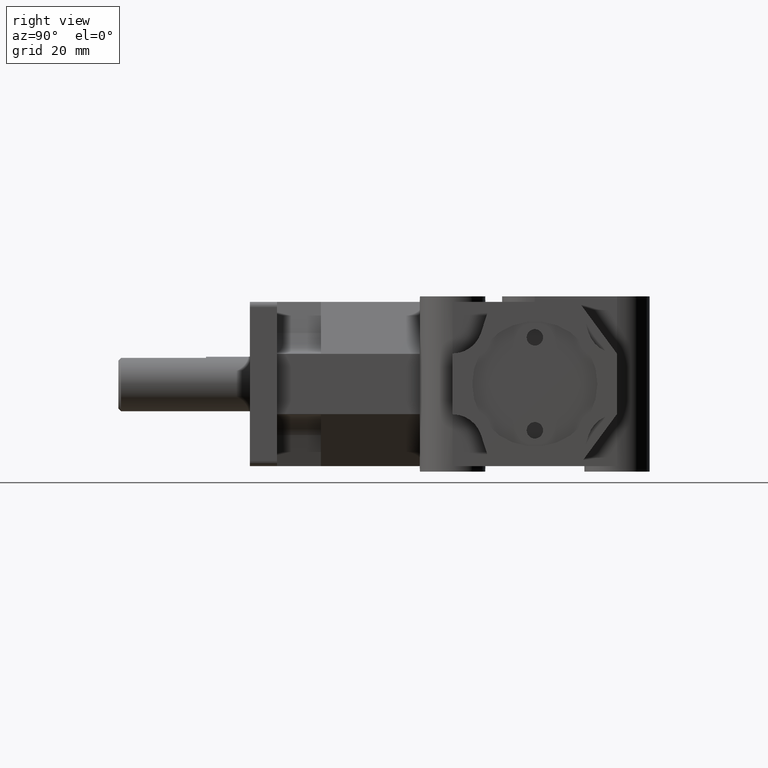
[diagram: clean part render]
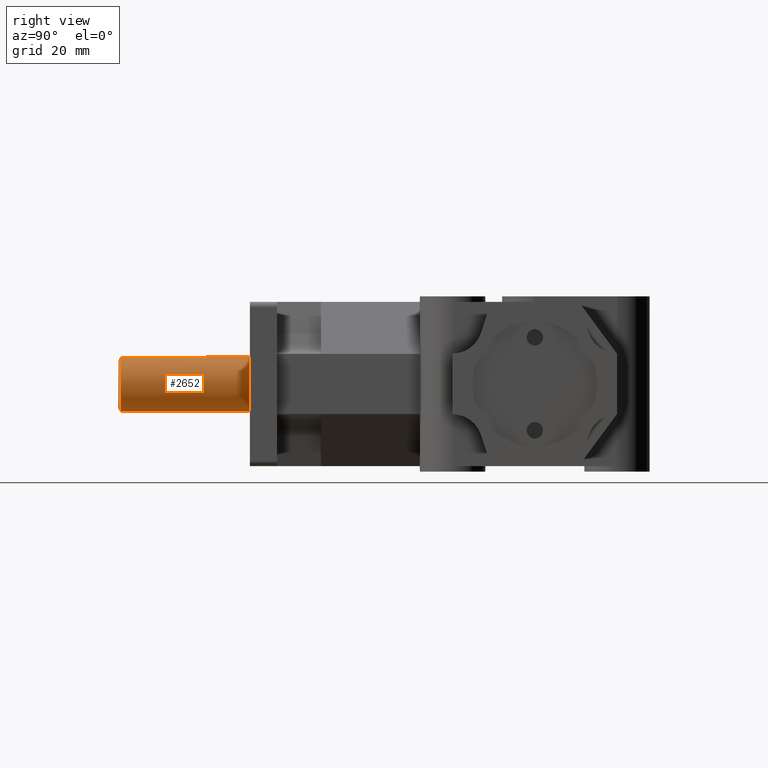
[diagram: same view with one face highlighted and labeled with its STEP entity id]
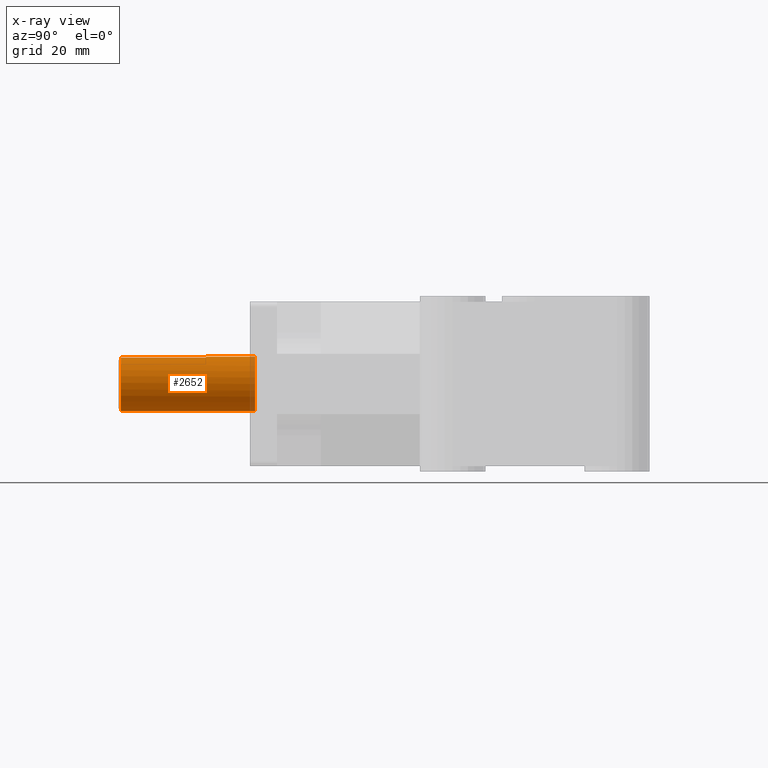
[diagram: x-ray of the same camera — body ghosted, the highlighted face saturated]
A machine part, right view. The second image highlights one B-rep face of the part: STEP entity #2652.
The next image is the same camera in x-ray: the body ghosted, the highlighted face saturated — about 4% of this face is hidden behind the body in this view.
In plain terms, the highlighted cylindrical surface (bore or boss wall) has radius 7.9375 mm, axis along (0, -1, 0).
Its self-contained STEP definition (entity closure, byte-faithful):
#259=FACE_OUTER_BOUND('',#437,.T.);
#437=EDGE_LOOP('',(#2248,#2249,#2250,#2251,#2252,#2253,#2254,#2255));
#689=LINE('',#4341,#954);
#694=LINE('',#4350,#959);
#696=LINE('',#4356,#961);
#954=VECTOR('',#3541,1.);
#959=VECTOR('',#3548,1.);
#961=VECTOR('',#3558,0.3125);
#1041=CIRCLE('',#2750,0.3125);
#1105=CIRCLE('',#2894,0.3125);
#1106=CIRCLE('',#2895,0.3125);
#1108=CIRCLE('',#2901,0.3125);
#1149=VERTEX_POINT('',#3820);
#1320=VERTEX_POINT('',#4320);
#1321=VERTEX_POINT('',#4324);
#1322=VERTEX_POINT('',#4326);
#1326=VERTEX_POINT('',#4340);
#1329=VERTEX_POINT('',#4348);
#1400=EDGE_CURVE('',#1149,#1149,#1041,.T.);
#1650=EDGE_CURVE('',#1320,#1321,#1105,.T.);
#1651=EDGE_CURVE('',#1321,#1322,#1106,.T.);
#1657=EDGE_CURVE('',#1326,#1322,#689,.T.);
#1662=EDGE_CURVE('',#1320,#1329,#694,.T.);
#1663=EDGE_CURVE('',#1329,#1326,#1108,.T.);
#1665=EDGE_CURVE('',#1321,#1149,#696,.T.);
#2248=ORIENTED_EDGE('',*,*,#1650,.F.);
#2249=ORIENTED_EDGE('',*,*,#1662,.T.);
#2250=ORIENTED_EDGE('',*,*,#1663,.T.);
#2251=ORIENTED_EDGE('',*,*,#1657,.T.);
#2252=ORIENTED_EDGE('',*,*,#1651,.F.);
#2253=ORIENTED_EDGE('',*,*,#1665,.T.);
#2254=ORIENTED_EDGE('',*,*,#1400,.F.);
#2255=ORIENTED_EDGE('',*,*,#1665,.F.);
#2541=CYLINDRICAL_SURFACE('',#2903,0.3125);
#2652=ADVANCED_FACE('',(#259),#2541,.T.);
#2750=AXIS2_PLACEMENT_3D('',#3821,#3055,#3056);
#2894=AXIS2_PLACEMENT_3D('',#4325,#3528,#3529);
#2895=AXIS2_PLACEMENT_3D('',#4327,#3530,#3531);
#2901=AXIS2_PLACEMENT_3D('',#4352,#3551,#3552);
#2903=AXIS2_PLACEMENT_3D('',#4355,#3556,#3557);
#3055=DIRECTION('center_axis',(0.,1.,0.));
#3056=DIRECTION('ref_axis',(1.,0.,0.));
#3528=DIRECTION('center_axis',(0.,-1.,0.));
#3529=DIRECTION('ref_axis',(1.,0.,0.));
#3530=DIRECTION('center_axis',(0.,-1.,0.));
#3531=DIRECTION('ref_axis',(1.,0.,0.));
#3541=DIRECTION('',(0.,-1.,0.));
#3548=DIRECTION('',(0.,1.,0.));
#3551=DIRECTION('center_axis',(0.,1.,0.));
#3552=DIRECTION('ref_axis',(1.,0.,0.));
#3556=DIRECTION('center_axis',(0.,-1.,0.));
#3557=DIRECTION('ref_axis',(1.,0.,0.));
#3558=DIRECTION('',(0.,1.,0.));
#3820=CARTESIAN_POINT('',(-0.3125,0.06,-3.82702124733548E-17));
#3821=CARTESIAN_POINT('Origin',(0.,0.06,0.));
#4320=CARTESIAN_POINT('',(-0.09375,-1.47,0.298106000442796));
#4324=CARTESIAN_POINT('',(-0.3125,-1.47,-3.82702124733548E-17));
#4325=CARTESIAN_POINT('Origin',(0.,-1.47,0.));
#4326=CARTESIAN_POINT('',(0.09375,-1.47,0.298106000442796));
#4327=CARTESIAN_POINT('Origin',(0.,-1.47,0.));
#4340=CARTESIAN_POINT('',(0.09375,-0.5,0.298106000442796));
#4341=CARTESIAN_POINT('',(0.09375,0.,0.298106000442796));
#4348=CARTESIAN_POINT('',(-0.09375,-0.5,0.298106000442796));
#4350=CARTESIAN_POINT('',(-0.09375,0.,0.298106000442796));
#4352=CARTESIAN_POINT('Origin',(0.,-0.5,0.));
#4355=CARTESIAN_POINT('Origin',(0.,0.,0.));
#4356=CARTESIAN_POINT('',(-0.3125,0.,-3.82702124733548E-17));